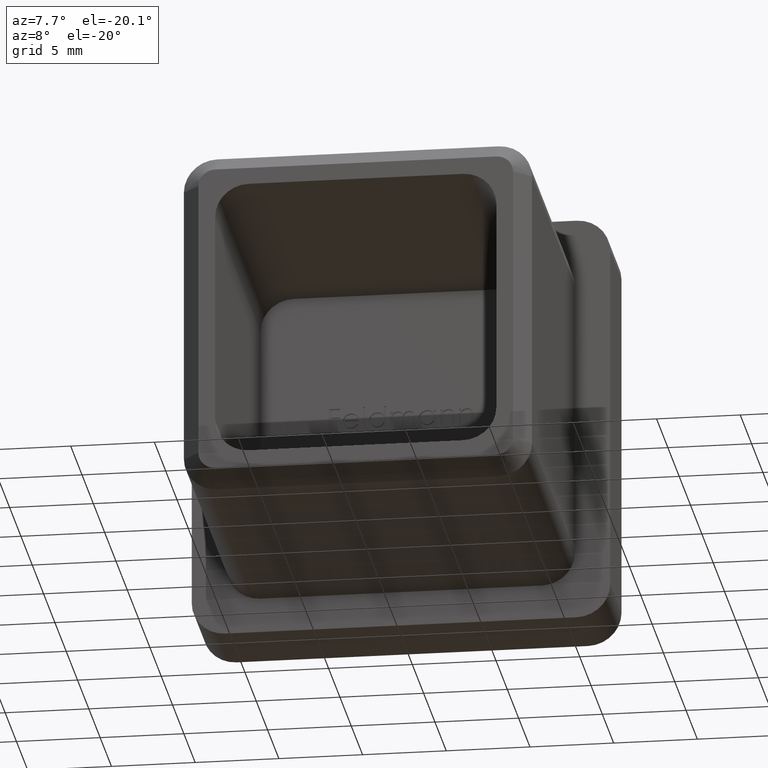
[diagram: clean part render]
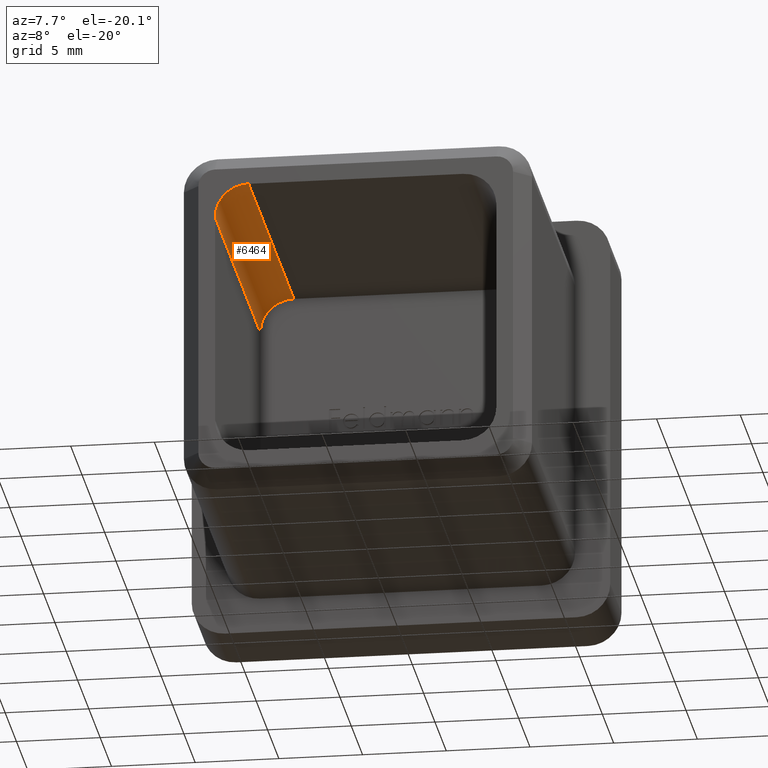
[diagram: same view with one face highlighted and labeled with its STEP entity id]
A machine part, auxiliary view. The second image highlights one B-rep face of the part: STEP entity #6464.
In plain terms, the highlighted cylindrical surface (edge-blend (fillet) strip) has radius 2 mm, axis along (0, -1, 0).
Its self-contained STEP definition (entity closure, byte-faithful):
#180 = DIRECTION ( 'NONE',  ( 0.0000000000000000000, 0.0000000000000000000, -1.000000000000000000 ) ) ;
#558 = VERTEX_POINT ( 'NONE', #727 ) ;
#566 = CYLINDRICAL_SURFACE ( 'NONE', #1440, 2.000000000000000000 ) ;
#727 = CARTESIAN_POINT ( 'NONE',  ( -8.400000000000003900, -20.00000000000000000, 6.400000000000004800 ) ) ;
#1160 = ORIENTED_EDGE ( 'NONE', *, *, #9105, .F. ) ;
#1330 = VERTEX_POINT ( 'NONE', #11522 ) ;
#1440 = AXIS2_PLACEMENT_3D ( 'NONE', #10668, #9394, #180 ) ;
#1481 = VERTEX_POINT ( 'NONE', #13847 ) ;
#2121 = AXIS2_PLACEMENT_3D ( 'NONE', #6589, #14515, #12260 ) ;
#2558 = ORIENTED_EDGE ( 'NONE', *, *, #14492, .F. ) ;
#2628 = EDGE_LOOP ( 'NONE', ( #2558, #12799, #13537, #1160 ) ) ;
#3112 = LINE ( 'NONE', #9346, #11915 ) ;
#3138 = DIRECTION ( 'NONE',  ( -0.0000000000000000000, 1.000000000000000000, -0.0000000000000000000 ) ) ;
#3468 = FACE_OUTER_BOUND ( 'NONE', #2628, .T. ) ;
#4069 = EDGE_CURVE ( 'NONE', #1481, #5852, #8281, .T. ) ;
#4129 = DIRECTION ( 'NONE',  ( -0.0000000000000000000, 1.000000000000000000, 0.0000000000000000000 ) ) ;
#4433 = AXIS2_PLACEMENT_3D ( 'NONE', #11382, #3138, #8916 ) ;
#5852 = VERTEX_POINT ( 'NONE', #10866 ) ;
#6464 = ADVANCED_FACE ( 'NONE', ( #3468 ), #566, .F. ) ;
#6589 = CARTESIAN_POINT ( 'NONE',  ( -6.400000000000004800, 0.0000000000000000000, 6.400000000000004800 ) ) ;
#6637 = EDGE_CURVE ( 'NONE', #5852, #558, #3112, .T. ) ;
#6931 = LINE ( 'NONE', #7743, #11773 ) ;
#7731 = DIRECTION ( 'NONE',  ( -0.0000000000000000000, -1.000000000000000000, 0.0000000000000000000 ) ) ;
#7743 = CARTESIAN_POINT ( 'NONE',  ( -6.400000000000004800, 0.0000000000000000000, 8.400000000000003900 ) ) ;
#8281 = CIRCLE ( 'NONE', #2121, 2.000000000000000000 ) ;
#8916 = DIRECTION ( 'NONE',  ( 0.0000000000000000000, 0.0000000000000000000, -1.000000000000000000 ) ) ;
#9105 = EDGE_CURVE ( 'NONE', #1330, #1481, #6931, .T. ) ;
#9346 = CARTESIAN_POINT ( 'NONE',  ( -8.400000000000003900, -20.00000000000000000, 6.400000000000004800 ) ) ;
#9394 = DIRECTION ( 'NONE',  ( 0.0000000000000000000, -1.000000000000000000, 0.0000000000000000000 ) ) ;
#10668 = CARTESIAN_POINT ( 'NONE',  ( -6.400000000000004800, -20.00000000000000000, 6.400000000000004800 ) ) ;
#10866 = CARTESIAN_POINT ( 'NONE',  ( -8.400000000000003900, 0.0000000000000000000, 6.400000000000004800 ) ) ;
#11382 = CARTESIAN_POINT ( 'NONE',  ( -6.400000000000004800, -20.00000000000000000, 6.400000000000004800 ) ) ;
#11522 = CARTESIAN_POINT ( 'NONE',  ( -6.400000000000004800, -20.00000000000000000, 8.400000000000003900 ) ) ;
#11773 = VECTOR ( 'NONE', #4129, 1000.000000000000000 ) ;
#11915 = VECTOR ( 'NONE', #7731, 1000.000000000000000 ) ;
#12260 = DIRECTION ( 'NONE',  ( 0.0000000000000000000, 0.0000000000000000000, 1.000000000000000000 ) ) ;
#12799 = ORIENTED_EDGE ( 'NONE', *, *, #6637, .F. ) ;
#13537 = ORIENTED_EDGE ( 'NONE', *, *, #4069, .F. ) ;
#13847 = CARTESIAN_POINT ( 'NONE',  ( -6.400000000000004800, 0.0000000000000000000, 8.400000000000003900 ) ) ;
#14476 = CIRCLE ( 'NONE', #4433, 2.000000000000000000 ) ;
#14492 = EDGE_CURVE ( 'NONE', #558, #1330, #14476, .T. ) ;
#14515 = DIRECTION ( 'NONE',  ( -0.0000000000000000000, -1.000000000000000000, -0.0000000000000000000 ) ) ;